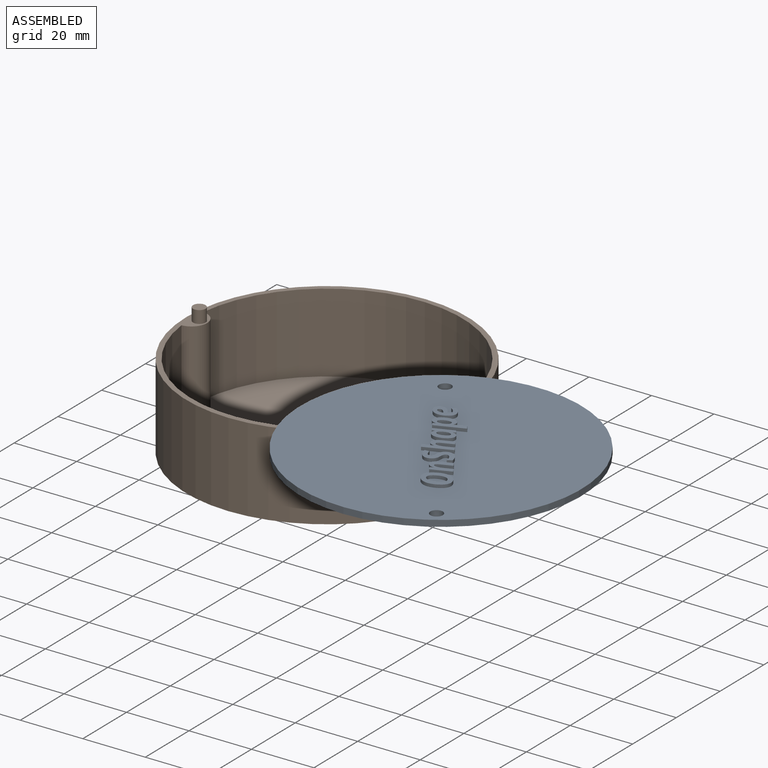
[diagram: assembled view]
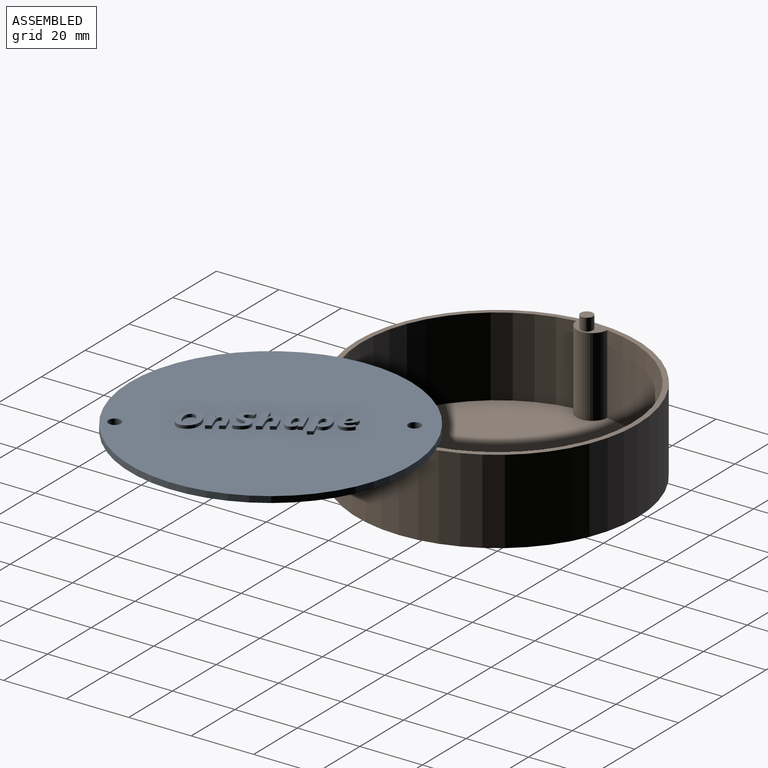
[diagram: assembled view, second angle]
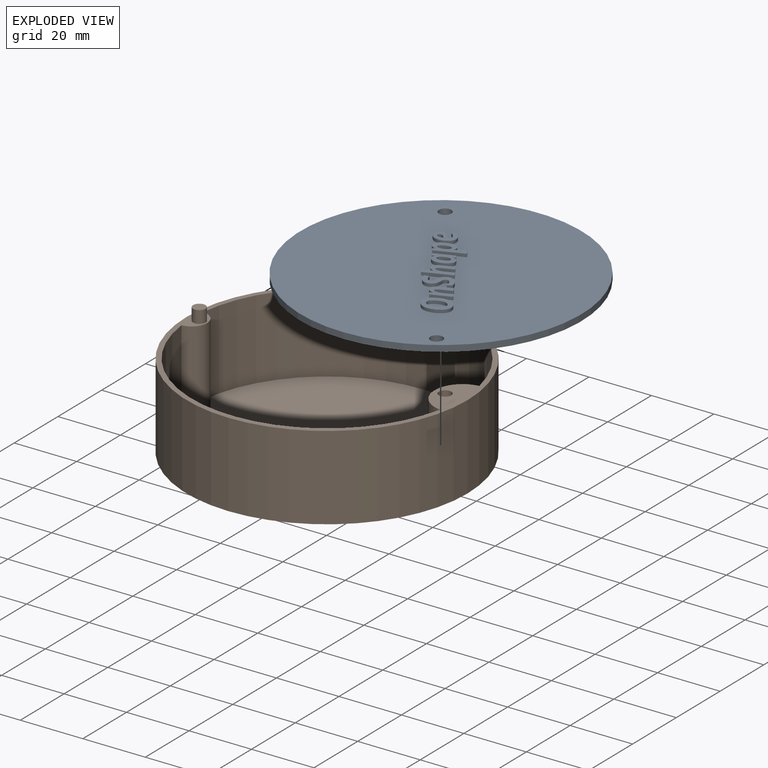
[diagram: exploded view]
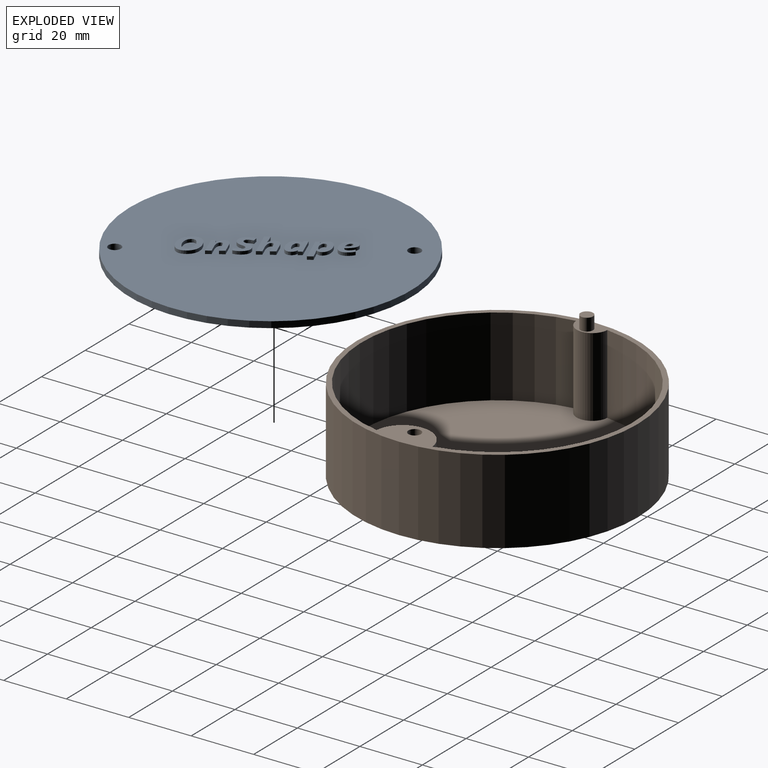
[diagram: exploded view, second angle]
ASSEMBLY  parts=2 mates=2
PART A: 170 faces, bbox 90x90x3 mm
  f0: plane 90x90mm, normal (0,0,1), area 6113.3mm2, adj f1,f2,f3,f14,f15,f16,f17,f18
  f1: cylinder r=2mm len=4mm, axis (0,0,-1), area 25.1mm2, adj f0,f4
  f2: cylinder r=2mm len=4mm, axis (0,0,-1), area 25.1mm2, adj f0,f4
  f3: cylinder r=45mm len=90mm, axis (0,0,-1), area 565.5mm2, adj f0,f4
  f4: plane 90x90mm, normal (0,0,-1), area 6336.6mm2, adj f1,f2,f3
  f5: extruded ~1.27x1mm, area 1.4mm2, adj f6,f24,f25,f26
  f6: extruded ~1.05x1mm, area 1.2mm2, adj f5,f7,f25,f26
  f7: extruded ~1.26x1mm, area 1.3mm2, adj f6,f8,f25,f26
  f8: extruded ~2.05x1mm, area 2.1mm2, adj f7,f9,f25,f26
  f9: extruded ~1.41x1mm, area 1.7mm2, adj f8,f10,f25,f26
  f10: extruded ~1.27x1mm, area 1.4mm2, adj f9,f11,f25,f26
  f11: extruded ~1.08x1mm, area 1.2mm2, adj f10,f12,f25,f26
  f12: extruded ~1.27x1mm, area 1.4mm2, adj f11,f13,f25,f26
  f13: extruded ~1.99x1mm, area 2mm2, adj f12,f24,f25,f26
  f14: extruded ~2.91x1mm, area 3mm2, adj f0,f15,f23,f25
  f15: extruded ~2.31x1mm, area 2.5mm2, adj f0,f14,f16,f25
  f16: extruded ~2.27x1mm, area 2.5mm2, adj f0,f15,f17,f25
  f17: extruded ~2.31x1mm, area 2.4mm2, adj f0,f16,f18,f25
  f18: extruded ~1.96x1.57mm, area 2.5mm2, adj f0,f17,f19,f25
  f19: extruded ~2.8x1mm, area 2.9mm2, adj f0,f18,f20,f25
  f20: extruded ~2.35x1mm, area 2.6mm2, adj f0,f19,f21,f25
  f21: extruded ~2.29x1mm, area 2.5mm2, adj f0,f20,f22,f25
  f22: extruded ~2.27x1mm, area 2.4mm2, adj f0,f21,f23,f25
  f23: extruded ~1.94x1.56mm, area 2.5mm2, adj f0,f14,f22,f25
  f24: extruded ~1.44x1mm, area 1.7mm2, adj f5,f13,f25,f26
  f25: plane 8.64x7.51mm, normal (0,0,1), area 34.5mm2, adj f5,f6,f7,f8,f9,f10,f11,f12
  f26: plane 5.66x3.94mm, normal (0,0,1), area 17.4mm2, adj f5,f6,f7,f8,f9,f10,f11,f12
  f27: plane 1.73x1mm, normal (0,-1,0), area 1.7mm2, adj f0,f28,f43,f44
  f28: plane 3.66x1mm, normal (0.98,-0.2,0), area 3.7mm2, adj f0,f27,f29,f44
  f29: extruded ~1.03x1mm, area 1mm2, adj f0,f28,f30,f44
  f30: extruded ~1.37x1mm, area 1.5mm2, adj f0,f29,f31,f44
  f31: extruded ~1.23x1mm, area 1.4mm2, adj f0,f30,f32,f44
  f32: extruded ~2.04x1.31mm, area 2.5mm2, adj f0,f31,f33,f44
  f33: plane 1x0.04mm, normal (0,1,0), area 0mm2, adj f0,f32,f34,f44
  f34: plane 1.19x1mm, normal (0.99,-0.1,0), area 1.2mm2, adj f0,f33,f35,f44
  f35: plane 1.32x1mm, normal (0,1,0), area 1.3mm2, adj f0,f34,f36,f44
  f36: plane 6.42x1.36mm, normal (-0.98,0.21,0), area 6.6mm2, adj f0,f35,f37,f44
  f37: plane 1.73x1mm, normal (0,-1,0), area 1.7mm2, adj f0,f36,f38,f44
  f38: plane 2.66x1mm, normal (0.98,-0.21,0), area 2.7mm2, adj f0,f37,f39,f44
  f39: extruded ~1.82x1mm, area 2mm2, adj f0,f38,f40,f44
  f40: extruded ~1x0.96mm, area 1.2mm2, adj f0,f39,f41,f44
  f41: extruded ~1x0.71mm, area 1.1mm2, adj f0,f40,f42,f44
  f42: extruded ~1x0.68mm, area 0.7mm2, adj f0,f41,f43,f44
  f43: plane 3.75x1mm, normal (-0.98,0.21,0), area 3.8mm2, adj f0,f27,f42,f44
  f44: plane 6.54x6.29mm, normal (0,0,1), area 23.9mm2, adj f27,f28,f29,f30,f31,f32,f33,f34
  f45: extruded ~1.9x1mm, area 2.2mm2, adj f0,f46,f68,f69
  f46: extruded ~1.29x1mm, area 1.4mm2, adj f0,f45,f47,f69
  f47: extruded ~1.04x1.01mm, area 1.5mm2, adj f0,f46,f48,f69
  f48: extruded ~1x0.85mm, area 1.1mm2, adj f0,f47,f49,f69
  f49: extruded ~1x0.61mm, area 0.7mm2, adj f0,f48,f50,f69
  f50: extruded ~1x0.68mm, area 0.8mm2, adj f0,f49,f51,f69
  f51: extruded ~1x0.78mm, area 0.8mm2, adj f0,f50,f52,f69
  f52: extruded ~1.65x1mm, area 1.7mm2, adj f0,f51,f53,f69
  f53: plane 1.34x1mm, normal (0.91,-0.42,0), area 1.5mm2, adj f0,f52,f54,f69
  f54: extruded ~2.28x1mm, area 2.4mm2, adj f0,f53,f55,f69
  f55: extruded ~1.51x1mm, area 1.6mm2, adj f0,f54,f56,f69
  f56: extruded ~1.01x1mm, area 1.4mm2, adj f0,f55,f57,f69
  f57: extruded ~1.32x1mm, area 1.4mm2, adj f0,f56,f58,f69
  f58: extruded ~1.2x1mm, area 1.3mm2, adj f0,f57,f59,f69
  f59: extruded ~1.13x1.11mm, area 1.6mm2, adj f0,f58,f60,f69
  f60: extruded ~1x0.71mm, area 0.9mm2, adj f0,f59,f61,f69
  f61: extruded ~1x0.35mm, area 0.4mm2, adj f0,f60,f62,f69
  f62: extruded ~1x0.43mm, area 0.4mm2, adj f0,f61,f63,f69
  f63: extruded ~1x0.67mm, area 0.8mm2, adj f0,f62,f64,f69
  f64: extruded ~1x1mm, area 1mm2, adj f0,f63,f65,f69
  f65: extruded ~2.06x1mm, area 2.2mm2, adj f0,f64,f66,f69
  f66: plane 1.57x1mm, normal (-1,0,0), area 1.6mm2, adj f0,f65,f67,f69
  f67: extruded ~2.04x1mm, area 2.1mm2, adj f0,f66,f68,f69
  f68: extruded ~2.3x1mm, area 2.5mm2, adj f0,f45,f67,f69
  f69: plane 8.63x6.14mm, normal (0,0,1), area 24.4mm2, adj f45,f46,f47,f48,f49,f50,f51,f52
  f70: plane 1.73x1mm, normal (0,-1,0), area 1.7mm2, adj f0,f71,f88,f89
  f71: plane 3.66x1mm, normal (0.98,-0.2,0), area 3.7mm2, adj f0,f70,f72,f89
  f72: extruded ~1.03x1mm, area 1mm2, adj f0,f71,f73,f89
  f73: extruded ~1.37x1mm, area 1.5mm2, adj f0,f72,f74,f89
  f74: extruded ~1.23x1mm, area 1.4mm2, adj f0,f73,f75,f89
  f75: extruded ~1.01x1mm, area 1.1mm2, adj f0,f74,f76,f89
  f76: extruded ~1x0.79mm, area 1.1mm2, adj f0,f75,f77,f89
  f77: plane 1x0.05mm, normal (0,1,0), area 0mm2, adj f0,f76,f78,f89
  f78: extruded ~1.77x1mm, area 1.8mm2, adj f0,f77,f79,f89
  f79: extruded ~1.6x1mm, area 1.6mm2, adj f0,f78,f80,f89
  f80: plane 1.73x1mm, normal (0,1,0), area 1.7mm2, adj f0,f79,f81,f89
  f81: plane 8.93x1.89mm, normal (-0.98,0.21,0), area 9.1mm2, adj f0,f80,f82,f89
  f82: plane 1.73x1mm, normal (0,-1,0), area 1.7mm2, adj f0,f81,f83,f89
  f83: plane 2.66x1mm, normal (0.98,-0.21,0), area 2.7mm2, adj f0,f82,f84,f89
  f84: extruded ~1.82x1mm, area 2mm2, adj f0,f83,f85,f89
  f85: extruded ~1x0.96mm, area 1.2mm2, adj f0,f84,f86,f89
  f86: extruded ~1x0.71mm, area 1.1mm2, adj f0,f85,f87,f89
  f87: extruded ~1x0.68mm, area 0.7mm2, adj f0,f86,f88,f89
  f88: plane 3.75x1mm, normal (-0.98,0.21,0), area 3.8mm2, adj f0,f70,f87,f89
  f89: plane 8.93x6.29mm, normal (0,0,1), area 28.5mm2, adj f70,f71,f72,f73,f74,f75,f76,f77
  f90: extruded ~1x0.76mm, area 0.9mm2, adj f91,f114,f115,f116
  f91: extruded ~1x0.55mm, area 0.6mm2, adj f90,f92,f115,f116
  f92: extruded ~1x0.76mm, area 0.8mm2, adj f91,f93,f115,f116
  f93: extruded ~1.34x1mm, area 1.4mm2, adj f92,f94,f115,f116
  f94: extruded ~1.09x1mm, area 1.2mm2, adj f93,f95,f115,f116
  f95: extruded ~1x0.74mm, area 0.9mm2, adj f94,f96,f115,f116
  f96: extruded ~1x0.58mm, area 0.7mm2, adj f95,f97,f115,f116
  f97: extruded ~1x0.68mm, area 0.7mm2, adj f96,f98,f115,f116
  f98: extruded ~1.49x1mm, area 1.5mm2, adj f97,f114,f115,f116
  f99: extruded ~1.33x1mm, area 1.5mm2, adj f0,f100,f113,f115
  f100: extruded ~1.83x1mm, area 2.1mm2, adj f0,f99,f101,f115
  f101: plane 1x0.02mm, normal (0,-1,0), area 0mm2, adj f0,f100,f102,f115
  f102: plane 1x0.83mm, normal (-1,0.1,0), area 0.8mm2, adj f0,f101,f103,f115
  f103: plane 1.32x1mm, normal (0,-1,0), area 1.3mm2, adj f0,f102,f104,f115
  f104: plane 6.42x1.37mm, normal (0.98,-0.21,0), area 6.6mm2, adj f0,f103,f105,f115
  f105: plane 1.33x1mm, normal (0,1,0), area 1.3mm2, adj f0,f104,f106,f115
  f106: plane 1x0.82mm, normal (-0.93,0.37,0), area 0.9mm2, adj f0,f105,f107,f115
  f107: plane 1x0.05mm, normal (0,1,0), area 0mm2, adj f0,f106,f108,f115
  f108: extruded ~1x0.7mm, area 1mm2, adj f0,f107,f109,f115
  f109: extruded ~1x0.96mm, area 1mm2, adj f0,f108,f110,f115
  f110: extruded ~1.47x1mm, area 1.6mm2, adj f0,f109,f111,f115
  f111: extruded ~1.6x1.09mm, area 1.9mm2, adj f0,f110,f112,f115
  f112: extruded ~2.17x1mm, area 2.2mm2, adj f0,f111,f113,f115
  f113: extruded ~1.71x1mm, area 1.8mm2, adj f0,f99,f112,f115
  f114: extruded ~1.04x1mm, area 1.2mm2, adj f90,f98,f115,f116
  f115: plane 6.65x6.27mm, normal (0,0,1), area 25.5mm2, adj f90,f91,f92,f93,f94,f95,f96,f97
  f116: plane 3.86x2.32mm, normal (0,0,1), area 6.7mm2, adj f90,f91,f92,f93,f94,f95,f96,f97
  f117: extruded ~1x0.76mm, area 0.9mm2, adj f118,f141,f142,f143
  f118: extruded ~1.01x1mm, area 1.4mm2, adj f117,f119,f142,f143
  f119: extruded ~1.36x1mm, area 1.4mm2, adj f118,f120,f142,f143
  f120: extruded ~1.09x1mm, area 1.2mm2, adj f119,f121,f142,f143
  f121: extruded ~1x0.73mm, area 0.9mm2, adj f120,f122,f142,f143
  f122: extruded ~1x0.59mm, area 0.7mm2, adj f121,f123,f142,f143
  f123: extruded ~1x0.73mm, area 0.8mm2, adj f122,f124,f142,f143
  f124: extruded ~1.43x1mm, area 1.4mm2, adj f123,f141,f142,f143
  f125: extruded ~1.32x1mm, area 1.5mm2, adj f0,f126,f140,f142
  f126: extruded ~1.82x1.09mm, area 2.2mm2, adj f0,f125,f127,f142
  f127: plane 1x0.05mm, normal (0,1,0), area 0.1mm2, adj f0,f126,f128,f142
  f128: plane 1x0.98mm, normal (1,-0.1,0), area 1mm2, adj f0,f127,f129,f142
  f129: plane 1.32x1mm, normal (0,1,0), area 1.3mm2, adj f0,f128,f130,f142
  f130: plane 9.24x1.96mm, normal (-0.98,0.21,0), area 9.4mm2, adj f0,f129,f131,f142
  f131: plane 1.73x1mm, normal (0,-1,0), area 1.7mm2, adj f0,f130,f132,f142
  f132: plane 1.95x1mm, normal (0.98,-0.21,0), area 2mm2, adj f0,f131,f133,f142
  f133: extruded ~1.69x1mm, area 1.7mm2, adj f0,f132,f134,f142
  f134: plane 1x0.05mm, normal (0,-1,0), area 0mm2, adj f0,f133,f135,f142
  f135: extruded ~1x0.72mm, area 1mm2, adj f0,f134,f136,f142
  f136: extruded ~1x0.82mm, area 0.9mm2, adj f0,f135,f137,f142
  f137: extruded ~1.5x1mm, area 1.7mm2, adj f0,f136,f138,f142
  f138: extruded ~1.61x1.08mm, area 2mm2, adj f0,f137,f139,f142
  f139: extruded ~2.11x1mm, area 2.2mm2, adj f0,f138,f140,f142
  f140: extruded ~1.73x1mm, area 1.8mm2, adj f0,f125,f139,f142
  f141: extruded ~1.03x1mm, area 1.2mm2, adj f117,f124,f142,f143
  f142: plane 9.36x6.86mm, normal (0,0,1), area 30.4mm2, adj f117,f118,f119,f120,f121,f122,f123,f124
  f143: plane 3.86x2.31mm, normal (0,0,1), area 6.7mm2, adj f117,f118,f119,f120,f121,f122,f123,f124
  f144: extruded ~1.87x1mm, area 2mm2, adj f0,f145,f167,f168
  f145: extruded ~2.24x1mm, area 2.3mm2, adj f0,f144,f146,f168
  f146: plane 1.3x1mm, normal (1,0,0), area 1.3mm2, adj f0,f145,f147,f168
  f147: extruded ~1x0.99mm, area 1.1mm2, adj f0,f146,f148,f168
  f148: extruded ~1x0.91mm, area 0.9mm2, adj f0,f147,f149,f168
  f149: extruded ~1x0.85mm, area 0.9mm2, adj f0,f148,f150,f168
  f150: extruded ~1x0.82mm, area 0.9mm2, adj f0,f149,f151,f168
  f151: plane 1x0.12mm, normal (1,0,0), area 0.1mm2, adj f0,f150,f152,f168
  f152: plane 1x0.12mm, normal (1,-0.09,0), area 0.1mm2, adj f0,f151,f153,f168
  f153: plane 1x0.29mm, normal (0,-1,0), area 0.3mm2, adj f0,f152,f154,f168
  f154: extruded ~2.74x1mm, area 2.8mm2, adj f0,f153,f155,f168
  f155: extruded ~1.65x1mm, area 2mm2, adj f0,f154,f156,f168
  f156: extruded ~1.28x1mm, area 1.5mm2, adj f0,f155,f157,f168
  f157: extruded ~1.58x1mm, area 1.7mm2, adj f0,f156,f158,f168
  f158: extruded ~1.83x1mm, area 1.9mm2, adj f0,f157,f159,f168
  f159: extruded ~1.49x1.28mm, area 2mm2, adj f0,f158,f160,f168
  f160: extruded ~2.17x1mm, area 2.2mm2, adj f0,f159,f167,f168
  f161: extruded ~1x0.95mm, area 1.1mm2, adj f162,f166,f168,f169
  f162: extruded ~1x0.6mm, area 0.9mm2, adj f161,f163,f168,f169
  f163: extruded ~1x0.75mm, area 1mm2, adj f162,f164,f168,f169
  f164: extruded ~1.39x1mm, area 1.4mm2, adj f163,f165,f168,f169
  f165: plane 1x0.26mm, normal (0,1,0), area 0.3mm2, adj f164,f166,f168,f169
  f166: extruded ~1.12x1mm, area 1.3mm2, adj f161,f165,f168,f169
  f167: extruded ~1.83x1mm, area 2mm2, adj f0,f144,f160,f168
  f168: plane 6.65x5.74mm, normal (0,0,1), area 23.1mm2, adj f144,f145,f146,f147,f148,f149,f150,f151
  f169: plane 2.14x1.58mm, normal (0,0,1), area 2.3mm2, adj f161,f162,f163,f164,f165,f166
PART B: 13 faces, bbox 90x90x31 mm
  f0: cylinder r=2mm len=24mm, axis (0,0,-1), area 301.6mm2, adj f4,f12
  f1: cylinder r=43.4mm len=85.58mm, axis (0,0,-1), area 3107.1mm2, adj f3,f4,f7,f10
  f2: cylinder r=43.4mm len=85.58mm, axis (0,0,-1), area 3107.1mm2, adj f3,f4,f7,f10
  f3: plane 86.8x85.58mm, normal (0,0,1), area 5757.4mm2, adj f1,f2,f7,f10
  f4: plane 90x90mm, normal (0,0,1), area 579.2mm2, adj f0,f1,f2,f5,f7,f9,f10
  f5: cylinder r=45mm len=90mm, axis (0,0,-1), area 7634.1mm2, adj f4,f6
  f6: plane 90x90mm, normal (0,0,-1), area 6333.5mm2, adj f5,f11
  f7: cylinder r=5mm len=25.4mm, axis (0,0,-1), area 384.3mm2, adj f1,f2,f3,f4
  f8: plane 4x4mm, normal (0,0,1), area 12.6mm2, adj f9
  f9: cylinder r=2mm len=4mm, axis (0,0,-1), area 50.3mm2, adj f4,f8
  f10: cylinder r=9mm len=25.4mm, axis (0,0,-1), area 670.7mm2, adj f1,f2,f3,f4
  f11: cylinder r=3mm len=6mm, axis (0,0,-1), area 56.5mm2, adj f6,f12
  f12: plane 6x6mm, normal (0,0,-1), area 15.7mm2, adj f0,f11
PLACE A rot(axis=(0,0,1),123.4deg) t=(-10.69,21.94,11.5)mm
PLACE B t=(-69.28,53.5,-15.5)mm fixed
MATE cylindrical A.f2 <-> B.f0  axis (0,0,1) through (-31.48,53.5,13.5)mm
MATE planar A.f3 <-> B.f1  axis (0,0,-1) through (-10.69,21.94,11.5)mm
